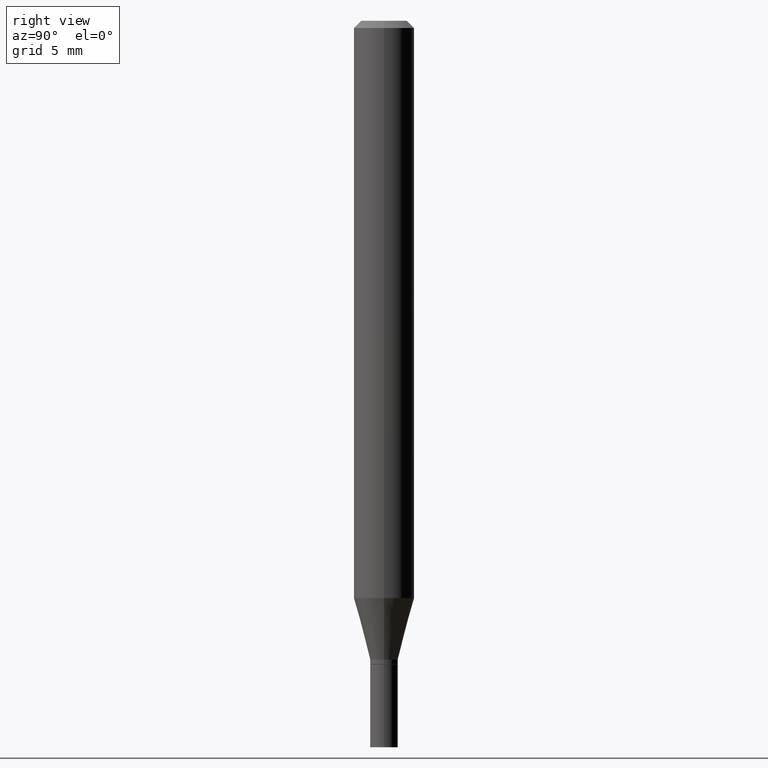
[diagram: clean part render]
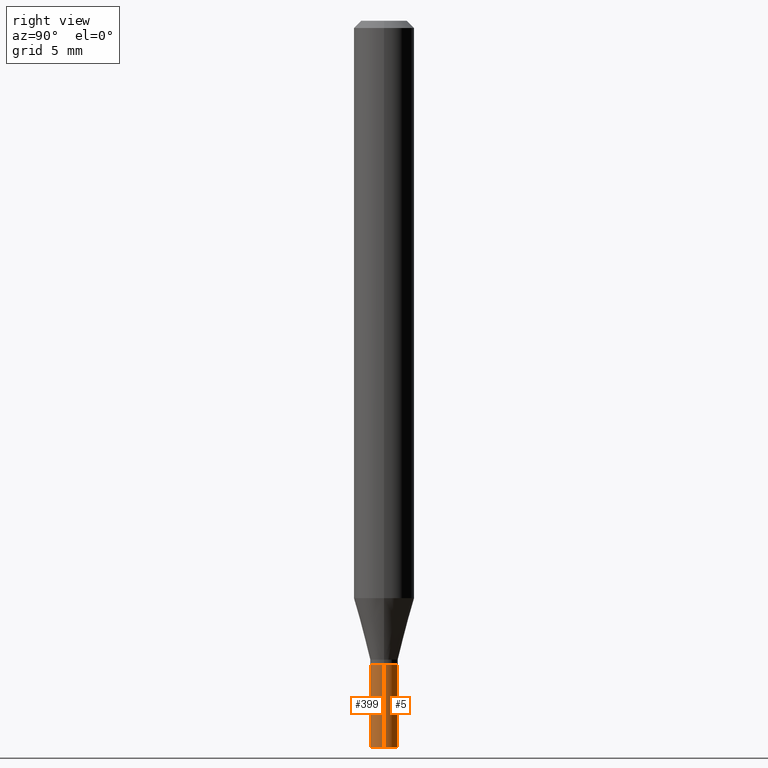
[diagram: same view with one multi-face feature highlighted, each face labeled with its STEP entity id]
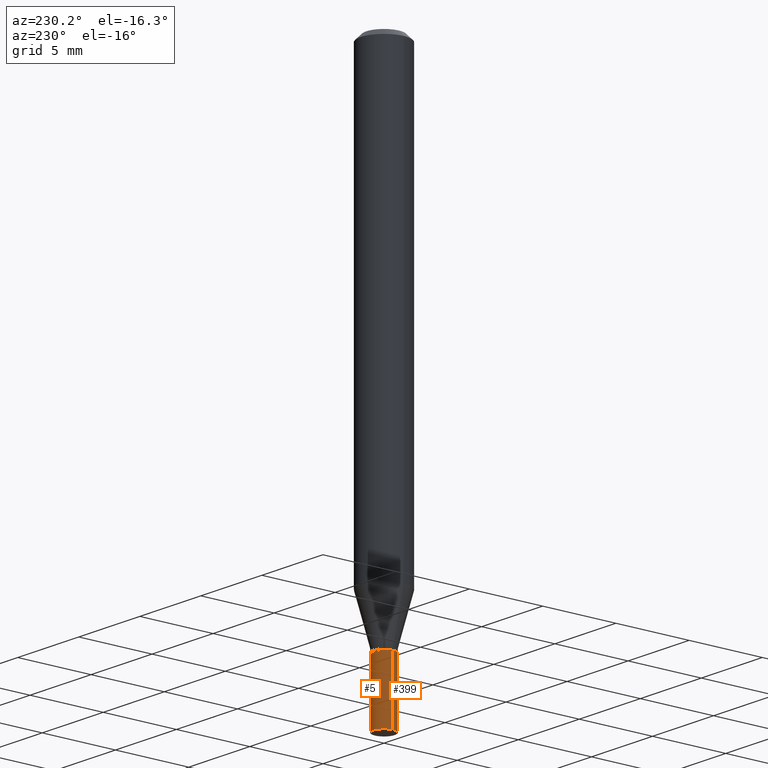
[diagram: same view with one multi-face feature highlighted, each face labeled with its STEP entity id]
A machine part, right view. The highlighted faces form ONE feature: a constant-radius fillet chain: 2 tangent blend faces with common blend radius 0.7239 mm. The faces share edges in the B-rep.
A second angle (auxiliary view) of the same feature is appended — it is thin or edge-on in the first view.
Their STEP definitions:
[1] entity #399 (Cylinder):
#7 = VERTEX_POINT ( 'NONE', #51 ) ;
#34 = DIRECTION ( 'NONE',  ( -2.445468806185136877E-29, 3.491481338843145188E-15, 1.000000000000000000 ) ) ;
#39 = CIRCLE ( 'NONE', #225, 0.02850000000000000103 ) ;
#51 = CARTESIAN_POINT ( 'NONE',  ( 0.02850000000000000103, -5.436236444578777472E-15, -1.500000000000000222 ) ) ;
#69 = VERTEX_POINT ( 'NONE', #305 ) ;
#71 = ORIENTED_EDGE ( 'NONE', *, *, #410, .F. ) ;
#87 = AXIS2_PLACEMENT_3D ( 'NONE', #424, #369, #463 ) ;
#100 = CARTESIAN_POINT ( 'NONE',  ( -0.02850000000000000103, 2.025046796916285603E-16, -1.401896500722648086E-30 ) ) ;
#172 = CYLINDRICAL_SURFACE ( 'NONE', #87, 0.02850000000000000103 ) ;
#220 = DIRECTION ( 'NONE',  ( -2.445468806185136597E-29, 3.491481338843145583E-15, 1.000000000000000000 ) ) ;
#225 = AXIS2_PLACEMENT_3D ( 'NONE', #229, #378, #352 ) ;
#226 = EDGE_CURVE ( 'NONE', #257, #7, #39, .T. ) ;
#229 = CARTESIAN_POINT ( 'NONE',  ( 3.668203209277704895E-29, -5.237222008264718177E-15, -1.500000000000000222 ) ) ;
#231 = EDGE_CURVE ( 'NONE', #7, #273, #416, .T. ) ;
#234 = CARTESIAN_POINT ( 'NONE',  ( 0.02850000000000000103, -1.990144363140586052E-16, 1.389710381101841869E-30 ) ) ;
#256 = VECTOR ( 'NONE', #34, 39.37007874015748143 ) ;
#257 = VERTEX_POINT ( 'NONE', #462 ) ;
#264 = CIRCLE ( 'NONE', #304, 0.02850000000000000103 ) ;
#269 = DIRECTION ( 'NONE',  ( -2.445468806185136877E-29, 3.491481338843145188E-15, 1.000000000000000000 ) ) ;
#273 = VERTEX_POINT ( 'NONE', #430 ) ;
#280 = DIRECTION ( 'NONE',  ( 1.000000000000000000, -6.982962677686280910E-15, 0.000000000000000000 ) ) ;
#282 = LINE ( 'NONE', #100, #256 ) ;
#284 = ORIENTED_EDGE ( 'NONE', *, *, #226, .T. ) ;
#301 = EDGE_CURVE ( 'NONE', #257, #69, #282, .T. ) ;
#304 = AXIS2_PLACEMENT_3D ( 'NONE', #319, #220, #280 ) ;
#305 = CARTESIAN_POINT ( 'NONE',  ( -0.02850000000000000103, -4.736195674102000895E-15, -1.329000000000000181 ) ) ;
#319 = CARTESIAN_POINT ( 'NONE',  ( 3.250028043420046945E-29, -4.640178699322541079E-15, -1.329000000000000181 ) ) ;
#325 = EDGE_LOOP ( 'NONE', ( #458, #284, #365, #71 ) ) ;
#352 = DIRECTION ( 'NONE',  ( 1.000000000000000000, -6.982962677686280910E-15, 0.000000000000000000 ) ) ;
#365 = ORIENTED_EDGE ( 'NONE', *, *, #231, .T. ) ;
#369 = DIRECTION ( 'NONE',  ( -2.445468806185136597E-29, 3.491481338843145583E-15, 1.000000000000000000 ) ) ;
#378 = DIRECTION ( 'NONE',  ( -2.445468806185136597E-29, 3.491481338843145583E-15, 1.000000000000000000 ) ) ;
#386 = VECTOR ( 'NONE', #269, 39.37007874015748143 ) ;
#396 = FACE_OUTER_BOUND ( 'NONE', #325, .T. ) ;
#399 = ADVANCED_FACE ( 'NONE', ( #396 ), #172, .T. ) ;
#410 = EDGE_CURVE ( 'NONE', #69, #273, #264, .T. ) ;
#416 = LINE ( 'NONE', #234, #386 ) ;
#424 = CARTESIAN_POINT ( 'NONE',  ( 0.000000000000000000, 0.000000000000000000, 0.000000000000000000 ) ) ;
#430 = CARTESIAN_POINT ( 'NONE',  ( 0.02850000000000000103, -4.839193135636600375E-15, -1.329000000000000181 ) ) ;
#458 = ORIENTED_EDGE ( 'NONE', *, *, #301, .F. ) ;
#462 = CARTESIAN_POINT ( 'NONE',  ( -0.02850000000000000103, -4.736195674102000895E-15, -1.500000000000000222 ) ) ;
#463 = DIRECTION ( 'NONE',  ( 1.000000000000000000, -6.982962677686266711E-15, 4.876176775795936353E-29 ) ) ;
[2] entity #5 (Cylinder):
#2 = EDGE_LOOP ( 'NONE', ( #133, #55, #102, #368 ) ) ;
#5 = ADVANCED_FACE ( 'NONE', ( #286 ), #433, .T. ) ;
#7 = VERTEX_POINT ( 'NONE', #51 ) ;
#15 = EDGE_CURVE ( 'NONE', #273, #69, #81, .T. ) ;
#28 = DIRECTION ( 'NONE',  ( 1.000000000000000000, -6.982962677686280910E-15, 0.000000000000000000 ) ) ;
#34 = DIRECTION ( 'NONE',  ( -2.445468806185136877E-29, 3.491481338843145188E-15, 1.000000000000000000 ) ) ;
#51 = CARTESIAN_POINT ( 'NONE',  ( 0.02850000000000000103, -5.436236444578777472E-15, -1.500000000000000222 ) ) ;
#52 = AXIS2_PLACEMENT_3D ( 'NONE', #193, #414, #374 ) ;
#55 = ORIENTED_EDGE ( 'NONE', *, *, #301, .T. ) ;
#69 = VERTEX_POINT ( 'NONE', #305 ) ;
#81 = CIRCLE ( 'NONE', #52, 0.02850000000000000103 ) ;
#100 = CARTESIAN_POINT ( 'NONE',  ( -0.02850000000000000103, 2.025046796916285603E-16, -1.401896500722648086E-30 ) ) ;
#102 = ORIENTED_EDGE ( 'NONE', *, *, #15, .F. ) ;
#106 = CARTESIAN_POINT ( 'NONE',  ( 0.000000000000000000, 0.000000000000000000, 0.000000000000000000 ) ) ;
#133 = ORIENTED_EDGE ( 'NONE', *, *, #442, .T. ) ;
#193 = CARTESIAN_POINT ( 'NONE',  ( 3.250028043420046945E-29, -4.640178699322541079E-15, -1.329000000000000181 ) ) ;
#231 = EDGE_CURVE ( 'NONE', #7, #273, #416, .T. ) ;
#234 = CARTESIAN_POINT ( 'NONE',  ( 0.02850000000000000103, -1.990144363140586052E-16, 1.389710381101841869E-30 ) ) ;
#240 = CARTESIAN_POINT ( 'NONE',  ( 3.668203209277704895E-29, -5.237222008264718177E-15, -1.500000000000000222 ) ) ;
#256 = VECTOR ( 'NONE', #34, 39.37007874015748143 ) ;
#257 = VERTEX_POINT ( 'NONE', #462 ) ;
#269 = DIRECTION ( 'NONE',  ( -2.445468806185136877E-29, 3.491481338843145188E-15, 1.000000000000000000 ) ) ;
#273 = VERTEX_POINT ( 'NONE', #430 ) ;
#279 = AXIS2_PLACEMENT_3D ( 'NONE', #240, #347, #28 ) ;
#282 = LINE ( 'NONE', #100, #256 ) ;
#286 = FACE_OUTER_BOUND ( 'NONE', #2, .T. ) ;
#301 = EDGE_CURVE ( 'NONE', #257, #69, #282, .T. ) ;
#305 = CARTESIAN_POINT ( 'NONE',  ( -0.02850000000000000103, -4.736195674102000895E-15, -1.329000000000000181 ) ) ;
#338 = CIRCLE ( 'NONE', #279, 0.02850000000000000103 ) ;
#347 = DIRECTION ( 'NONE',  ( -2.445468806185136597E-29, 3.491481338843145583E-15, 1.000000000000000000 ) ) ;
#363 = DIRECTION ( 'NONE',  ( -2.445468806185136597E-29, 3.491481338843145583E-15, 1.000000000000000000 ) ) ;
#368 = ORIENTED_EDGE ( 'NONE', *, *, #231, .F. ) ;
#374 = DIRECTION ( 'NONE',  ( 1.000000000000000000, -6.982962677686280910E-15, 0.000000000000000000 ) ) ;
#386 = VECTOR ( 'NONE', #269, 39.37007874015748143 ) ;
#414 = DIRECTION ( 'NONE',  ( -2.445468806185136597E-29, 3.491481338843145583E-15, 1.000000000000000000 ) ) ;
#416 = LINE ( 'NONE', #234, #386 ) ;
#430 = CARTESIAN_POINT ( 'NONE',  ( 0.02850000000000000103, -4.839193135636600375E-15, -1.329000000000000181 ) ) ;
#433 = CYLINDRICAL_SURFACE ( 'NONE', #455, 0.02850000000000000103 ) ;
#442 = EDGE_CURVE ( 'NONE', #7, #257, #338, .T. ) ;
#449 = DIRECTION ( 'NONE',  ( 1.000000000000000000, -6.982962677686266711E-15, 4.876176775795936353E-29 ) ) ;
#455 = AXIS2_PLACEMENT_3D ( 'NONE', #106, #363, #449 ) ;
#462 = CARTESIAN_POINT ( 'NONE',  ( -0.02850000000000000103, -4.736195674102000895E-15, -1.500000000000000222 ) ) ;